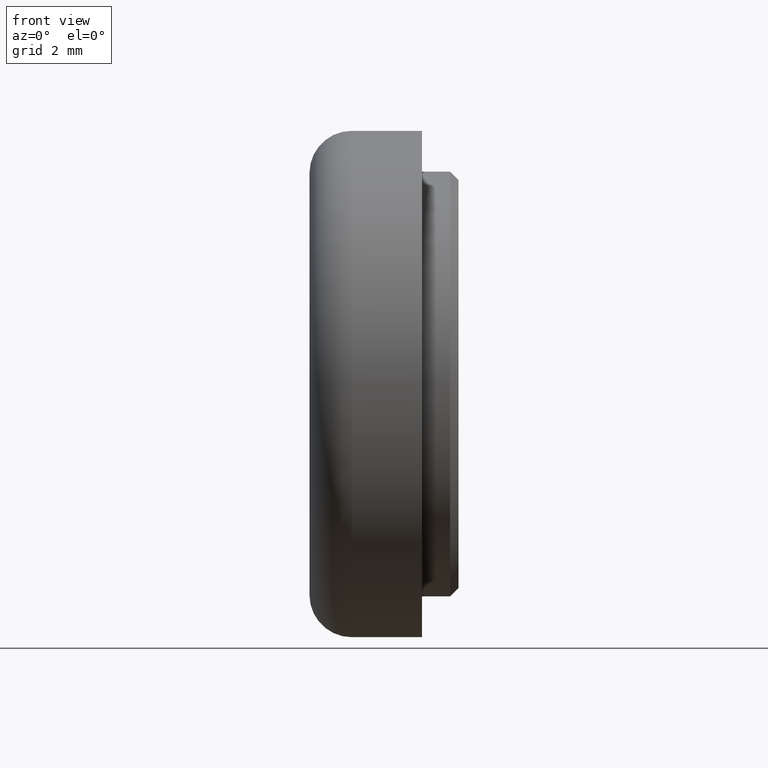
[diagram: clean part render]
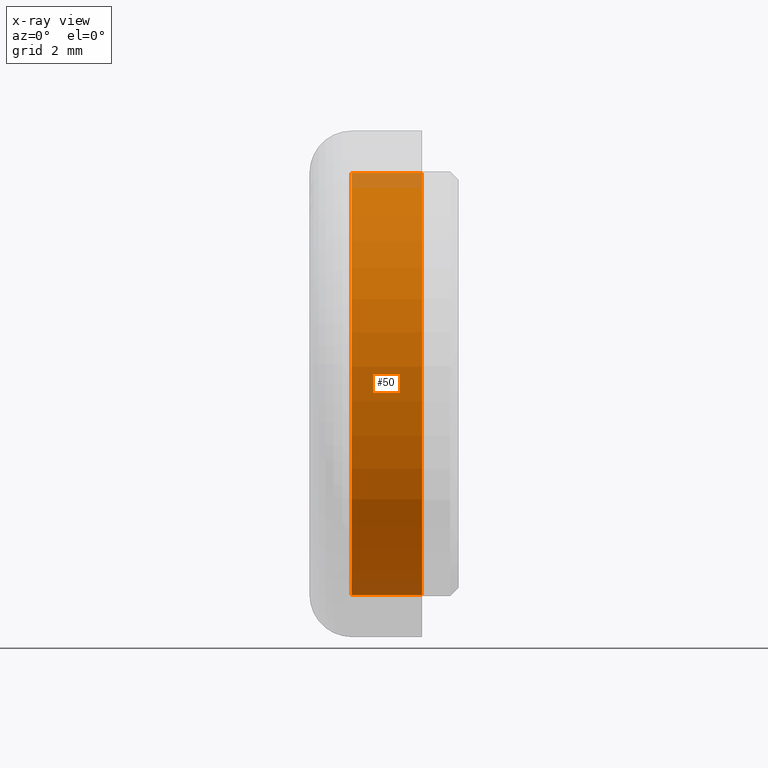
[diagram: x-ray — body ghosted, one internal face saturated and labeled with its STEP entity id]
A machine part, front view, then the same camera in x-ray: the body is ghosted and one INTERNAL B-rep face — a face not visible from any outside direction — is saturated and labeled: STEP entity #50.
In plain terms, the highlighted cylindrical surface (partial cylindrical patch) has radius 7.5 mm, axis along (-1, -0, -0).
Its self-contained STEP definition (entity closure, byte-faithful):
#32 = VERTEX_POINT ( 'NONE', #149 ) ;
#50 = ADVANCED_FACE ( 'NONE', ( #445 ), #590, .T. ) ;
#67 = EDGE_CURVE ( 'NONE', #32, #71, #432, .T. ) ;
#71 = VERTEX_POINT ( 'NONE', #170 ) ;
#96 = EDGE_LOOP ( 'NONE', ( #421, #405, #282, #613 ) ) ;
#129 = VECTOR ( 'NONE', #257, 1000.000000000000000 ) ;
#149 = CARTESIAN_POINT ( 'NONE',  ( 2.500000000000002200, 9.184850993605147900E-016, -7.499999999999999100 ) ) ;
#162 = LINE ( 'NONE', #267, #730 ) ;
#170 = CARTESIAN_POINT ( 'NONE',  ( 0.0000000000000000000, 9.184850993605147900E-016, -7.499999999999999100 ) ) ;
#181 = CIRCLE ( 'NONE', #286, 7.499999999999999100 ) ;
#197 = EDGE_CURVE ( 'NONE', #32, #622, #181, .T. ) ;
#241 = CIRCLE ( 'NONE', #451, 7.499999999999999100 ) ;
#257 = DIRECTION ( 'NONE',  ( -1.000000000000000000, -0.0000000000000000000, -0.0000000000000000000 ) ) ;
#267 = CARTESIAN_POINT ( 'NONE',  ( -88.98999999999999500, 0.0000000000000000000, 7.499999999999999100 ) ) ;
#282 = ORIENTED_EDGE ( 'NONE', *, *, #671, .T. ) ;
#286 = AXIS2_PLACEMENT_3D ( 'NONE', #717, #680, #288 ) ;
#288 = DIRECTION ( 'NONE',  ( 0.0000000000000000000, 0.0000000000000000000, 1.000000000000000000 ) ) ;
#333 = CARTESIAN_POINT ( 'NONE',  ( 0.0000000000000000000, 0.0000000000000000000, 0.0000000000000000000 ) ) ;
#336 = CARTESIAN_POINT ( 'NONE',  ( 2.500000000000002200, 0.0000000000000000000, 7.499999999999999100 ) ) ;
#383 = DIRECTION ( 'NONE',  ( -1.000000000000000000, -0.0000000000000000000, -0.0000000000000000000 ) ) ;
#405 = ORIENTED_EDGE ( 'NONE', *, *, #197, .T. ) ;
#421 = ORIENTED_EDGE ( 'NONE', *, *, #67, .F. ) ;
#432 = LINE ( 'NONE', #559, #129 ) ;
#445 = FACE_OUTER_BOUND ( 'NONE', #96, .T. ) ;
#450 = DIRECTION ( 'NONE',  ( 0.0000000000000000000, 0.0000000000000000000, 1.000000000000000000 ) ) ;
#451 = AXIS2_PLACEMENT_3D ( 'NONE', #333, #675, #623 ) ;
#466 = AXIS2_PLACEMENT_3D ( 'NONE', #477, #383, #450 ) ;
#472 = VERTEX_POINT ( 'NONE', #615 ) ;
#477 = CARTESIAN_POINT ( 'NONE',  ( -88.98999999999999500, 0.0000000000000000000, 0.0000000000000000000 ) ) ;
#559 = CARTESIAN_POINT ( 'NONE',  ( -88.98999999999999500, 9.184850993605147900E-016, -7.499999999999999100 ) ) ;
#590 = CYLINDRICAL_SURFACE ( 'NONE', #466, 7.499999999999999100 ) ;
#604 = EDGE_CURVE ( 'NONE', #71, #472, #241, .T. ) ;
#613 = ORIENTED_EDGE ( 'NONE', *, *, #604, .F. ) ;
#615 = CARTESIAN_POINT ( 'NONE',  ( 0.0000000000000000000, 0.0000000000000000000, 7.499999999999999100 ) ) ;
#622 = VERTEX_POINT ( 'NONE', #336 ) ;
#623 = DIRECTION ( 'NONE',  ( 0.0000000000000000000, 0.0000000000000000000, 1.000000000000000000 ) ) ;
#671 = EDGE_CURVE ( 'NONE', #622, #472, #162, .T. ) ;
#675 = DIRECTION ( 'NONE',  ( -1.000000000000000000, -0.0000000000000000000, -0.0000000000000000000 ) ) ;
#680 = DIRECTION ( 'NONE',  ( -1.000000000000000000, -0.0000000000000000000, -0.0000000000000000000 ) ) ;
#698 = DIRECTION ( 'NONE',  ( -1.000000000000000000, -0.0000000000000000000, -0.0000000000000000000 ) ) ;
#717 = CARTESIAN_POINT ( 'NONE',  ( 2.500000000000002200, 0.0000000000000000000, 0.0000000000000000000 ) ) ;
#730 = VECTOR ( 'NONE', #698, 1000.000000000000000 ) ;